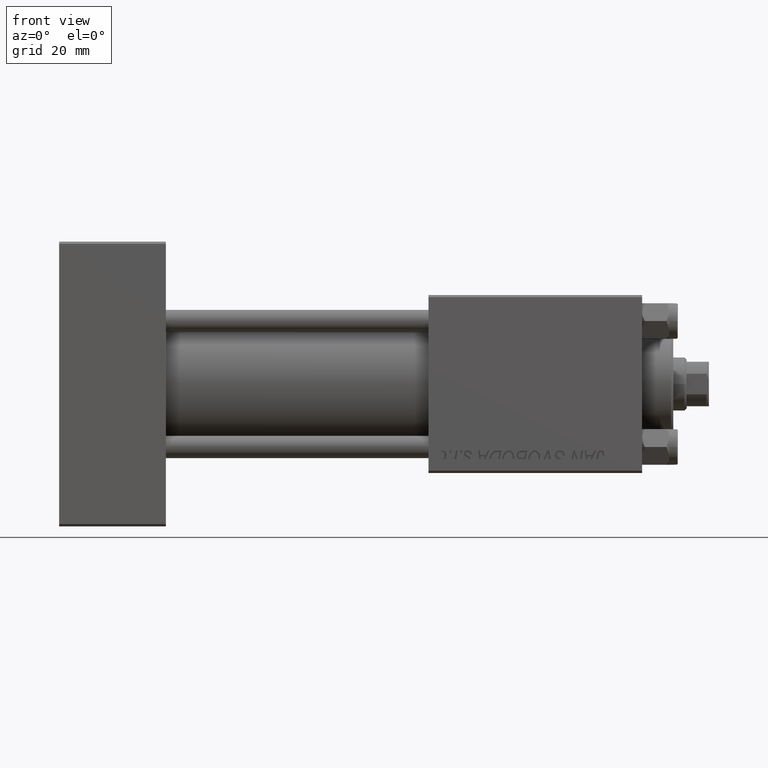
[diagram: clean part render]
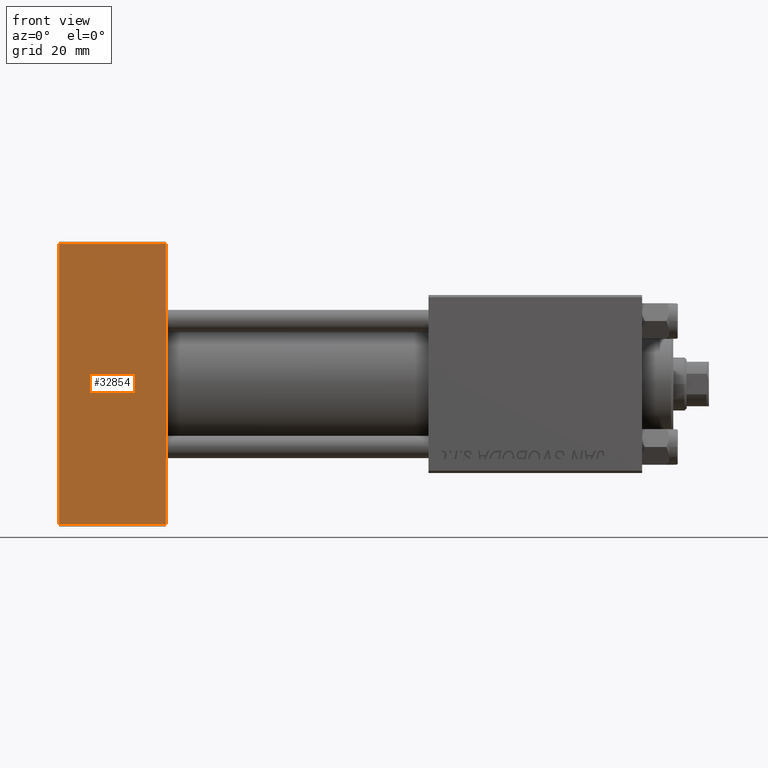
[diagram: same view with one face highlighted and labeled with its STEP entity id]
A machine part, front view. The second image highlights one B-rep face of the part: STEP entity #32854.
In plain terms, the highlighted planar face has unit normal (0, 1, 0).
Its self-contained STEP definition (entity closure, byte-faithful):
#1185 = DIRECTION ( 'NONE',  ( -0.000000000000000000, 1.000000000000000000, 0.000000000000000000 ) ) ;
#1444 = VECTOR ( 'NONE', #27700, 1000.000000000000000 ) ;
#1690 = EDGE_CURVE ( 'NONE', #16142, #38913, #30762, .T. ) ;
#1854 = EDGE_CURVE ( 'NONE', #10539, #38913, #6440, .T. ) ;
#6440 = LINE ( 'NONE', #45086, #7065 ) ;
#6802 = DIRECTION ( 'NONE',  ( -1.000000000000000000, 0.000000000000000000, 0.000000000000000000 ) ) ;
#7065 = VECTOR ( 'NONE', #41552, 1000.000000000000000 ) ;
#8685 = AXIS2_PLACEMENT_3D ( 'NONE', #35775, #1185, #29196 ) ;
#10014 = ORIENTED_EDGE ( 'NONE', *, *, #1690, .T. ) ;
#10539 = VERTEX_POINT ( 'NONE', #45857 ) ;
#13509 = CARTESIAN_POINT ( 'NONE',  ( 24.00000000000000000, -20.00000000000000355, -31.49999999999997158 ) ) ;
#13807 = VECTOR ( 'NONE', #30273, 1000.000000000000000 ) ;
#16142 = VERTEX_POINT ( 'NONE', #21014 ) ;
#19640 = CARTESIAN_POINT ( 'NONE',  ( 24.00000000000000000, -20.00000000000000355, -31.49999999999997158 ) ) ;
#21014 = CARTESIAN_POINT ( 'NONE',  ( 0.000000000000000000, -20.00000000000000355, -31.49999999999997158 ) ) ;
#21948 = CARTESIAN_POINT ( 'NONE',  ( 24.00000000000000000, -20.00000000000000355, 31.50000000000000711 ) ) ;
#23271 = CARTESIAN_POINT ( 'NONE',  ( 0.000000000000000000, -20.00000000000000355, 31.50000000000000711 ) ) ;
#26600 = ORIENTED_EDGE ( 'NONE', *, *, #35584, .T. ) ;
#26846 = EDGE_CURVE ( 'NONE', #10539, #38966, #37360, .T. ) ;
#27699 = PLANE ( 'NONE',  #8685 ) ;
#27700 = DIRECTION ( 'NONE',  ( 1.000000000000000000, 0.000000000000000000, 0.000000000000000000 ) ) ;
#29196 = DIRECTION ( 'NONE',  ( 0.000000000000000000, -0.000000000000000000, 1.000000000000000000 ) ) ;
#30273 = DIRECTION ( 'NONE',  ( 0.000000000000000000, 0.000000000000000000, -1.000000000000000000 ) ) ;
#30762 = LINE ( 'NONE', #19640, #1444 ) ;
#32854 = ADVANCED_FACE ( 'NONE', ( #46876 ), #27699, .F. ) ;
#35584 = EDGE_CURVE ( 'NONE', #38966, #16142, #37589, .T. ) ;
#35775 = CARTESIAN_POINT ( 'NONE',  ( 24.00000000000000000, -20.00000000000000355, 32.00000000000000000 ) ) ;
#37360 = LINE ( 'NONE', #21948, #39147 ) ;
#37589 = LINE ( 'NONE', #49442, #13807 ) ;
#38913 = VERTEX_POINT ( 'NONE', #13509 ) ;
#38966 = VERTEX_POINT ( 'NONE', #23271 ) ;
#39147 = VECTOR ( 'NONE', #6802, 1000.000000000000000 ) ;
#41552 = DIRECTION ( 'NONE',  ( 0.000000000000000000, 0.000000000000000000, -1.000000000000000000 ) ) ;
#42320 = ORIENTED_EDGE ( 'NONE', *, *, #1854, .F. ) ;
#45086 = CARTESIAN_POINT ( 'NONE',  ( 24.00000000000000000, -20.00000000000000355, 32.00000000000000000 ) ) ;
#45857 = CARTESIAN_POINT ( 'NONE',  ( 24.00000000000000000, -20.00000000000000355, 31.50000000000000711 ) ) ;
#46741 = EDGE_LOOP ( 'NONE', ( #26600, #10014, #42320, #49310 ) ) ;
#46876 = FACE_OUTER_BOUND ( 'NONE', #46741, .T. ) ;
#49310 = ORIENTED_EDGE ( 'NONE', *, *, #26846, .T. ) ;
#49442 = CARTESIAN_POINT ( 'NONE',  ( 0.000000000000000000, -20.00000000000000355, 32.00000000000000000 ) ) ;